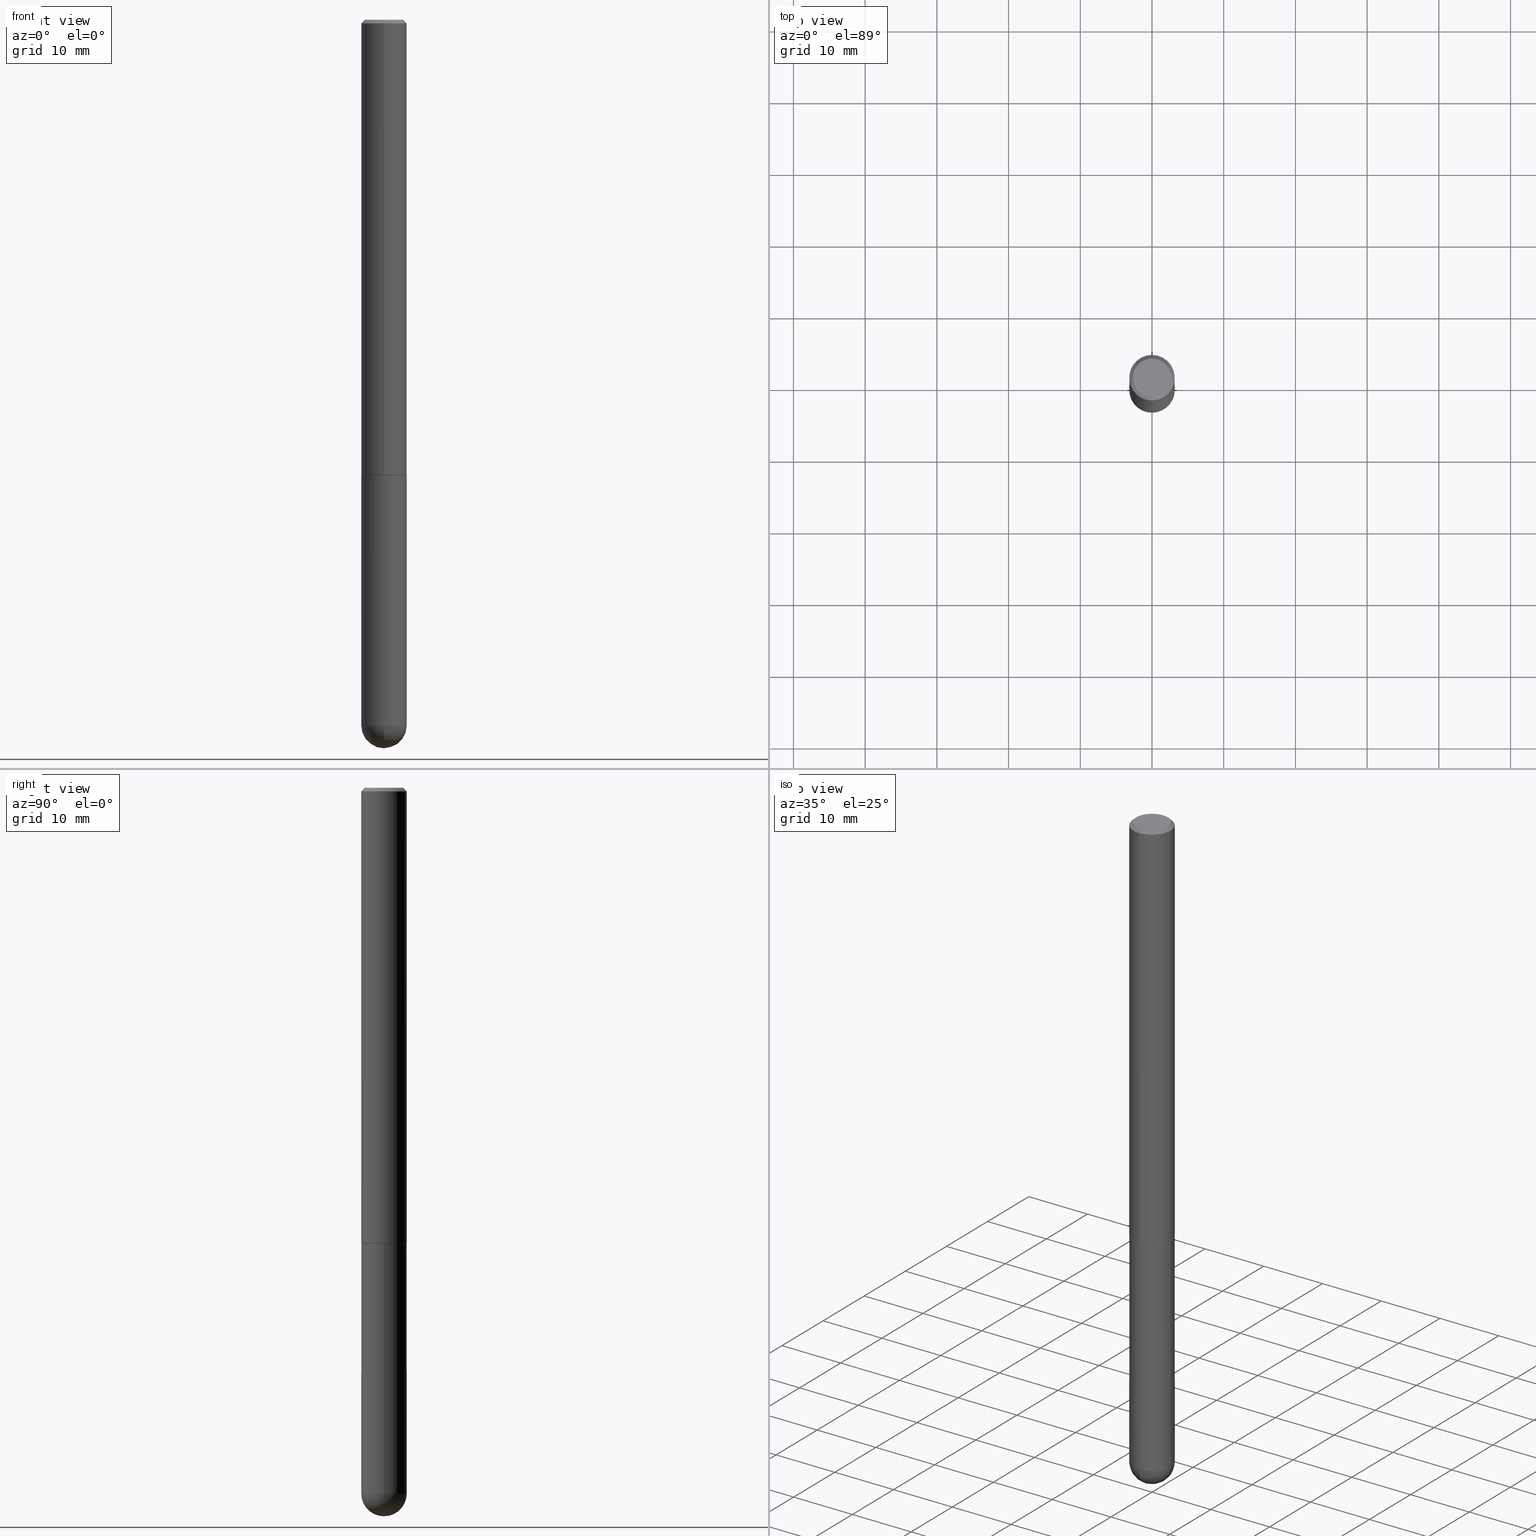
[diagram: canonical four-view strip — front | top / right | iso, engineering-drawing reading convention]
A machine part, canonical four-view strip (front | top / right | iso — engineering-drawing reading convention). The complete STEP part file that produces these views, byte-faithful:
ISO-10303-21;
HEADER;
FILE_DESCRIPTION (( 'STEP AP203' ),
    '1' );
FILE_NAME ('33124.STEP',
    '2024-02-21T17:52:29',
    ( '' ),
    ( '' ),
    'SwSTEP 2.0',
    'SolidWorks 2023',
    '' );
FILE_SCHEMA (( 'CONFIG_CONTROL_DESIGN' ));
ENDSEC;

DATA;
#1 = CARTESIAN_POINT ( 'NONE',  ( 4.698376246524950803E-45, -6.707010663619730204E-31, -1.921111269502891550E-16 ) ) ;
#2 = VERTEX_POINT ( 'NONE', #186 ) ;
#3 = EDGE_CURVE ( 'NONE', #216, #81, #60, .T. ) ;
#4 = AXIS2_PLACEMENT_3D ( 'NONE', #291, #301, #275 ) ;
#5 = PERSON_AND_ORGANIZATION ( #255, #123 ) ;
#6 = COORDINATED_UNIVERSAL_TIME_OFFSET ( 5, 0, .BEHIND. ) ;
#7 = FACE_OUTER_BOUND ( 'NONE', #379, .T. ) ;
#8 = CARTESIAN_POINT ( 'NONE',  ( 9.476191623967404313E-29, -1.352949018801718908E-14, -3.875000000000000000 ) ) ;
#9 = PERSON_AND_ORGANIZATION ( #255, #123 ) ;
#10 = FACE_OUTER_BOUND ( 'NONE', #239, .T. ) ;
#11 = DIRECTION ( 'NONE',  ( 5.024295867789304057E-15, 0.7071067811867248754, 0.7071067811863699371 ) ) ;
#12 = CONICAL_SURFACE ( 'NONE', #396, 0.1239999999999999991, 0.7853981633976958587 ) ;
#13 = CARTESIAN_POINT ( 'NONE',  ( -0.1250000000000000000, -1.024091834786240099E-14, -2.500000000000000000 ) ) ;
#14 = AXIS2_PLACEMENT_3D ( 'NONE', #343, #73, #402 ) ;
#15 = DIRECTION ( 'NONE',  ( 1.000000000000000000, -6.982962677686261189E-15, 0.000000000000000000 ) ) ;
#16 = EDGE_CURVE ( 'NONE', #304, #207, #155, .T. ) ;
#17 = ORIENTED_EDGE ( 'NONE', *, *, #141, .T. ) ;
#18 = CARTESIAN_POINT ( 'NONE',  ( 0.000000000000000000, 0.000000000000000000, 0.000000000000000000 ) ) ;
#19 = ORIENTED_EDGE ( 'NONE', *, *, #265, .F. ) ;
#20 = AXIS2_PLACEMENT_3D ( 'NONE', #278, #241, #305 ) ;
#21 = FACE_OUTER_BOUND ( 'NONE', #93, .T. ) ;
#22 = ORIENTED_EDGE ( 'NONE', *, *, #16, .F. ) ;
#23 = DIRECTION ( 'NONE',  ( -2.445655450108679082E-29, 3.491214054121520398E-15, 1.000000000000000000 ) ) ;
#24 = CARTESIAN_POINT ( 'NONE',  ( 4.698376246524950803E-45, -6.707010663619730204E-31, -1.921111269502891550E-16 ) ) ;
#25 = ORIENTED_EDGE ( 'NONE', *, *, #355, .T. ) ;
#26 = AXIS2_PLACEMENT_3D ( 'NONE', #94, #220, #356 ) ;
#27 = VERTEX_POINT ( 'NONE', #353 ) ;
#28 = EDGE_CURVE ( 'NONE', #87, #148, #187, .T. ) ;
#29 = PERSON_AND_ORGANIZATION ( #255, #123 ) ;
#30 = DIRECTION ( 'NONE',  ( -4.851104656540955597E-15, -0.7071067811865487940, -0.7071067811865461294 ) ) ;
#31 = DIRECTION ( 'NONE',  ( -2.445655450108679082E-29, 3.491214054121520398E-15, 1.000000000000000000 ) ) ;
#32 = CARTESIAN_POINT ( 'NONE',  ( 8.881784197001260212E-16, 0.1250000000000001388, -4.364017567651904935E-16 ) ) ;
#33 = VECTOR ( 'NONE', #315, 39.37007874015748143 ) ;
#34 = APPROVAL_PERSON_ORGANIZATION ( #324, #90, #388 ) ;
#35 = CALENDAR_DATE ( 2024, 21, 2 ) ;
#36 = ORIENTED_EDGE ( 'NONE', *, *, #202, .T. ) ;
#37 = COORDINATED_UNIVERSAL_TIME_OFFSET ( 5, 0, .BEHIND. ) ;
#38 = DIRECTION ( 'NONE',  ( -6.982962677686265922E-15, -1.000000000000000000, 4.406206441393973340E-15 ) ) ;
#39 = APPROVAL_STATUS ( 'not_yet_approved' ) ;
#40 = CIRCLE ( 'NONE', #91, 0.1250000000000000278 ) ;
#41 = LOCAL_TIME ( 12, 52, 29.00000000000000000, #357 ) ;
#42 = FACE_OUTER_BOUND ( 'NONE', #400, .T. ) ;
#43 = CALENDAR_DATE ( 2024, 21, 2 ) ;
#44 = DIRECTION ( 'NONE',  ( -2.445655450108679082E-29, 3.491214054121520398E-15, 1.000000000000000000 ) ) ;
#45 = ADVANCED_FACE ( 'NONE', ( #61 ), #253, .T. ) ;
#46 = CIRCLE ( 'NONE', #260, 0.1250000000000000278 ) ;
#47 = CARTESIAN_POINT ( 'NONE',  ( 4.891310900217364470E-31, -6.982428108243048636E-17, -0.02000000000000002470 ) ) ;
#48 = ORIENTED_EDGE ( 'NONE', *, *, #54, .F. ) ;
#49 = ORIENTED_EDGE ( 'NONE', *, *, #391, .F. ) ;
#50 = DIRECTION ( 'NONE',  ( -2.445655450108679082E-29, 3.491214054121520398E-15, 1.000000000000000000 ) ) ;
#51 = VECTOR ( 'NONE', #11, 39.37007874015748854 ) ;
#52 = VERTEX_POINT ( 'NONE', #151 ) ;
#53 = DIRECTION ( 'NONE',  ( 1.000000000000000000, 0.000000000000000000, 0.000000000000000000 ) ) ;
#54 = EDGE_CURVE ( 'NONE', #52, #304, #126, .T. ) ;
#55 = ORIENTED_EDGE ( 'NONE', *, *, #28, .F. ) ;
#56 = CIRCLE ( 'NONE', #403, 0.1250000000000002776 ) ;
#57 = CIRCLE ( 'NONE', #14, 0.1250000000000000000 ) ;
#58 = CARTESIAN_POINT ( 'NONE',  ( 0.000000000000000000, 0.000000000000000000, 0.000000000000000000 ) ) ;
#59 = CC_DESIGN_PERSON_AND_ORGANIZATION_ASSIGNMENT ( #258, #329, ( #109 ) ) ;
#60 = LINE ( 'NONE', #317, #33 ) ;
#61 = FACE_OUTER_BOUND ( 'NONE', #339, .T. ) ;
#62 = DIRECTION ( 'NONE',  ( -6.982962677686265922E-15, -1.000000000000000000, 3.491214054121520398E-15 ) ) ;
#63 = ORIENTED_EDGE ( 'NONE', *, *, #185, .T. ) ;
#64 = AXIS2_PLACEMENT_3D ( 'NONE', #112, #50, #344 ) ;
#65 = SHAPE_DEFINITION_REPRESENTATION ( #250, #272 ) ;
#66 = ORIENTED_EDGE ( 'NONE', *, *, #370, .T. ) ;
#67 = LINE ( 'NONE', #196, #116 ) ;
#68 = CYLINDRICAL_SURFACE ( 'NONE', #176, 0.1250000000000000000 ) ;
#69 = DATE_AND_TIME ( #363, #163 ) ;
#70 = DIRECTION ( 'NONE',  ( 6.982962677686266711E-15, 1.000000000000000000, 0.000000000000000000 ) ) ;
#71 = FACE_OUTER_BOUND ( 'NONE', #209, .T. ) ;
#72 = DIRECTION ( 'NONE',  ( -1.000000000000000000, 6.982962677686265922E-15, -4.883557194083112340E-29 ) ) ;
#73 = DIRECTION ( 'NONE',  ( -2.445468806185136597E-29, 3.491481338843145583E-15, 1.000000000000000000 ) ) ;
#74 = AXIS2_PLACEMENT_3D ( 'NONE', #115, #245, #380 ) ;
#75 = DIRECTION ( 'NONE',  ( -6.982962677686265922E-15, -1.000000000000000000, 3.491214054121520398E-15 ) ) ;
#76 = LOCAL_TIME ( 12, 52, 29.00000000000000000, #125 ) ;
#77 = ORIENTED_EDGE ( 'NONE', *, *, #188, .F. ) ;
#78 = ORIENTED_EDGE ( 'NONE', *, *, #370, .F. ) ;
#79 = CARTESIAN_POINT ( 'NONE',  ( 9.476191623967404313E-29, -1.352949018801718908E-14, -3.875000000000000000 ) ) ;
#80 = EDGE_CURVE ( 'NONE', #2, #304, #367, .T. ) ;
#81 = VERTEX_POINT ( 'NONE', #13 ) ;
#82 = DIRECTION ( 'NONE',  ( -6.982962677686265922E-15, -1.000000000000000000, 3.491214054121520004E-15 ) ) ;
#83 = ORIENTED_EDGE ( 'NONE', *, *, #3, .F. ) ;
#84 =( NAMED_UNIT ( * ) SI_UNIT ( $, .STERADIAN. ) SOLID_ANGLE_UNIT ( ) );
#85 = CARTESIAN_POINT ( 'NONE',  ( 9.456100236134031739E-29, -1.443245368101796326E-14, -4.000000000000000888 ) ) ;
#86 = APPLICATION_CONTEXT ( 'configuration controlled 3d designs of mechanical parts and assemblies' ) ;
#87 = VERTEX_POINT ( 'NONE', #167 ) ;
#88 = ADVANCED_FACE ( 'NONE', ( #234 ), #152, .T. ) ;
#89 = CARTESIAN_POINT ( 'NONE',  ( 9.476191623967404313E-29, -1.352949018801718908E-14, -3.875000000000000000 ) ) ;
#90 = APPROVAL ( #393, 'UNSPECIFIED' ) ;
#91 = AXIS2_PLACEMENT_3D ( 'NONE', #397, #362, #369 ) ;
#92 = CC_DESIGN_APPROVAL ( #267, ( #175 ) ) ;
#93 = EDGE_LOOP ( 'NONE', ( #110, #360, #19, #113 ) ) ;
#94 = CARTESIAN_POINT ( 'NONE',  ( 9.145071846053518065E-29, -1.400367255615723938E-14, -3.875000000000000000 ) ) ;
#95 = CALENDAR_DATE ( 2024, 21, 2 ) ;
#96 = ORIENTED_EDGE ( 'NONE', *, *, #188, .T. ) ;
#97 = VECTOR ( 'NONE', #31, 39.37007874015748143 ) ;
#98 = APPROVAL_DATE_TIME ( #264, #215 ) ;
#99 = CYLINDRICAL_SURFACE ( 'NONE', #142, 0.1250000000000000000 ) ;
#100 = DIRECTION ( 'NONE',  ( 1.000000000000000000, -6.982962677686270655E-15, 0.000000000000000000 ) ) ;
#101 = CARTESIAN_POINT ( 'NONE',  ( 6.114138625271698266E-29, -8.728035135303801982E-15, -2.500000000000000000 ) ) ;
#102 = CIRCLE ( 'NONE', #389, 0.1250000000000000278 ) ;
#103 = CC_DESIGN_APPROVAL ( #90, ( #351 ) ) ;
#104 = FACE_OUTER_BOUND ( 'NONE', #140, .T. ) ;
#105 = DIRECTION ( 'NONE',  ( 1.000000000000000000, -6.982962677686261189E-15, 0.000000000000000000 ) ) ;
#106 = ADVANCED_FACE ( 'NONE', ( #42 ), #157, .F. ) ;
#107 = CYLINDRICAL_SURFACE ( 'NONE', #243, 0.1250000000000001388 ) ;
#108 = CIRCLE ( 'NONE', #74, 0.1239999999999999991 ) ;
#109 = PRODUCT_DEFINITION_FORMATION_WITH_SPECIFIED_SOURCE ( 'ANY', '', #384, .NOT_KNOWN. ) ;
#110 = ORIENTED_EDGE ( 'NONE', *, *, #80, .T. ) ;
#111 = ADVANCED_FACE ( 'NONE', ( #7 ), #284, .T. ) ;
#112 = CARTESIAN_POINT ( 'NONE',  ( 4.891310900217364470E-31, -6.982428108243048636E-17, -0.02000000000000002470 ) ) ;
#113 = ORIENTED_EDGE ( 'NONE', *, *, #181, .F. ) ;
#114 = PLANE ( 'NONE',  #20 ) ;
#115 = CARTESIAN_POINT ( 'NONE',  ( 6.114138625271698266E-29, -8.728035135303801982E-15, -2.500000000000000000 ) ) ;
#116 = VECTOR ( 'NONE', #44, 39.37007874015748143 ) ;
#117 = ORIENTED_EDGE ( 'NONE', *, *, #181, .T. ) ;
#118 = DIRECTION ( 'NONE',  ( 0.000000000000000000, 0.000000000000000000, 1.000000000000000000 ) ) ;
#119 = PERSON_AND_ORGANIZATION_ROLE ( 'design_owner' ) ;
#120 = EDGE_LOOP ( 'NONE', ( #36, #145, #180, #77 ) ) ;
#121 = VERTEX_POINT ( 'NONE', #204 ) ;
#122 = AXIS2_PLACEMENT_3D ( 'NONE', #325, #270, #100 ) ;
#123 = ORGANIZATION ( 'UNSPECIFIED', 'UNSPECIFIED', '' ) ;
#124 = ADVANCED_FACE ( 'NONE', ( #10 ), #259, .T. ) ;
#125 = COORDINATED_UNIVERSAL_TIME_OFFSET ( 5, 0, .BEHIND. ) ;
#126 = LINE ( 'NONE', #222, #51 ) ;
#127 = DATE_TIME_ROLE ( 'creation_date' ) ;
#128 = DIRECTION ( 'NONE',  ( 6.982962677686265922E-15, 1.000000000000000000, -3.491214054121520398E-15 ) ) ;
#129 = EDGE_CURVE ( 'NONE', #383, #216, #102, .T. ) ;
#130 = DIRECTION ( 'NONE',  ( -2.445468806185136597E-29, 3.491481338843145583E-15, 1.000000000000000000 ) ) ;
#131 = APPROVAL_ROLE ( '' ) ;
#132 = DIRECTION ( 'NONE',  ( 1.000000000000000000, -6.982962677686266711E-15, 4.876176775795935793E-29 ) ) ;
#133 = DATE_AND_TIME ( #361, #41 ) ;
#134 = FACE_OUTER_BOUND ( 'NONE', #120, .T. ) ;
#135 = AXIS2_PLACEMENT_3D ( 'NONE', #226, #333, #197 ) ;
#136 = DIRECTION ( 'NONE',  ( -2.445468806185136597E-29, 3.491481338843145583E-15, 1.000000000000000000 ) ) ;
#137 = ADVANCED_FACE ( 'NONE', ( #71 ), #68, .T. ) ;
#138 = DIRECTION ( 'NONE',  ( -2.445655450108679082E-29, 3.491214054121520398E-15, 1.000000000000000000 ) ) ;
#139 = CYLINDRICAL_SURFACE ( 'NONE', #358, 0.1250000000000001388 ) ;
#140 = EDGE_LOOP ( 'NONE', ( #83, #349, #310, #279, #306 ) ) ;
#141 = EDGE_CURVE ( 'NONE', #183, #207, #228, .T. ) ;
#142 = AXIS2_PLACEMENT_3D ( 'NONE', #201, #136, #132 ) ;
#143 = FACE_OUTER_BOUND ( 'NONE', #340, .T. ) ;
#144 = CIRCLE ( 'NONE', #238, 0.1050000000000002182 ) ;
#145 = ORIENTED_EDGE ( 'NONE', *, *, #54, .T. ) ;
#146 = APPLICATION_CONTEXT ( 'configuration controlled 3d designs of mechanical parts and assemblies' ) ;
#147 = EDGE_LOOP ( 'NONE', ( #312, #178 ) ) ;
#148 = VERTEX_POINT ( 'NONE', #165 ) ;
#149 = DIRECTION ( 'NONE',  ( -2.445468806185136877E-29, 3.491481338843145188E-15, 1.000000000000000000 ) ) ;
#150 = EDGE_CURVE ( 'NONE', #289, #383, #314, .T. ) ;
#151 = CARTESIAN_POINT ( 'NONE',  ( 8.846257060213868511E-16, 0.1239999999999912700, -2.500000000000000444 ) ) ;
#152 = CONICAL_SURFACE ( 'NONE', #308, 0.1239999999999999991, 0.7853981633976958587 ) ;
#153 = LOCAL_TIME ( 12, 52, 29.00000000000000000, #37 ) ;
#154 =( NAMED_UNIT ( * ) PLANE_ANGLE_UNIT ( ) SI_UNIT ( $, .RADIAN. ) );
#155 = LINE ( 'NONE', #32, #97 ) ;
#156 = PERSON_AND_ORGANIZATION ( #255, #123 ) ;
#157 = PLANE ( 'NONE',  #269 ) ;
#158 = ADVANCED_FACE ( 'NONE', ( #104 ), #99, .T. ) ;
#159 = CARTESIAN_POINT ( 'NONE',  ( 8.728703347107836346E-16, 0.1249999999999999167, -0.02000000000000046185 ) ) ;
#160 = CC_DESIGN_DATE_AND_TIME_ASSIGNMENT ( #221, #290, ( #351 ) ) ;
#161 = CLOSED_SHELL ( 'NONE', ( #166, #235, #111, #277, #229, #88, #319, #106 ) ) ;
#162 = APPROVAL_ROLE ( '' ) ;
#163 = LOCAL_TIME ( 12, 52, 29.00000000000000000, #6 ) ;
#164 = CARTESIAN_POINT ( 'NONE',  ( 8.030407079339215197E-16, 0.1050000000000002182, -5.586886026330495442E-16 ) ) ;
#165 = CARTESIAN_POINT ( 'NONE',  ( 0.1250000000000000000, -9.601573681818648281E-15, -2.500000000000000000 ) ) ;
#166 = ADVANCED_FACE ( 'NONE', ( #134 ), #12, .T. ) ;
#167 = CARTESIAN_POINT ( 'NONE',  ( 0.1250000000000000278, -1.200196710227331272E-14, -3.875000000000000000 ) ) ;
#168 = CONICAL_SURFACE ( 'NONE', #410, 0.1249999999999999861, 0.7853981633974467247 ) ;
#169 = AXIS2_PLACEMENT_3D ( 'NONE', #58, #118, #53 ) ;
#170 = DIRECTION ( 'NONE',  ( -2.445655450108679082E-29, 3.491214054121520398E-15, 1.000000000000000000 ) ) ;
#171 = FACE_OUTER_BOUND ( 'NONE', #276, .T. ) ;
#172 = EDGE_CURVE ( 'NONE', #87, #383, #40, .T. ) ;
#173 = ORIENTED_EDGE ( 'NONE', *, *, #355, .F. ) ;
#174 = EDGE_LOOP ( 'NONE', ( #48, #405, #96, #374 ) ) ;
#175 = PRODUCT_DEFINITION ( 'UNKNOWN', '', #109, #371 ) ;
#176 = AXIS2_PLACEMENT_3D ( 'NONE', #331, #390, #326 ) ;
#177 = CARTESIAN_POINT ( 'NONE',  ( 0.000000000000000000, 0.000000000000000000, 0.000000000000000000 ) ) ;
#178 = ORIENTED_EDGE ( 'NONE', *, *, #292, .F. ) ;
#179 = DIRECTION ( 'NONE',  ( 2.445655450108679082E-29, -3.491214054121520398E-15, -1.000000000000000000 ) ) ;
#180 = ORIENTED_EDGE ( 'NONE', *, *, #80, .F. ) ;
#181 = EDGE_CURVE ( 'NONE', #2, #27, #67, .T. ) ;
#182 = CARTESIAN_POINT ( 'NONE',  ( -8.658873720330357934E-16, -0.1240000000000087144, -2.499999999999999556 ) ) ;
#183 = VERTEX_POINT ( 'NONE', #164 ) ;
#184 = DIRECTION ( 'NONE',  ( -2.445468806185136597E-29, 3.491481338843145583E-15, 1.000000000000000000 ) ) ;
#185 = EDGE_CURVE ( 'NONE', #81, #148, #210, .T. ) ;
#186 = CARTESIAN_POINT ( 'NONE',  ( -8.728703347107241743E-16, -0.1250000000000090206, -2.498999999999999666 ) ) ;
#187 = LINE ( 'NONE', #251, #365 ) ;
#188 = EDGE_CURVE ( 'NONE', #337, #2, #364, .T. ) ;
#189 = CARTESIAN_POINT ( 'NONE',  ( 8.728703347108771147E-16, 0.1249999999999863443, -3.875000000000000444 ) ) ;
#190 = ORIENTED_EDGE ( 'NONE', *, *, #408, .F. ) ;
#191 = AXIS2_PLACEMENT_3D ( 'NONE', #294, #72, #300 ) ;
#192 = CIRCLE ( 'NONE', #244, 0.1249999999999999861 ) ;
#193 = DIRECTION ( 'NONE',  ( -6.982962677686265922E-15, -1.000000000000000000, 3.491214054121520398E-15 ) ) ;
#194 = PERSON_AND_ORGANIZATION_ROLE ( 'design_supplier' ) ;
#195 = CC_DESIGN_PERSON_AND_ORGANIZATION_ASSIGNMENT ( #348, #119, ( #384 ) ) ;
#196 = CARTESIAN_POINT ( 'NONE',  ( -8.728703347107842263E-16, -0.1250000000000001388, 4.364017567651904935E-16 ) ) ;
#197 = DIRECTION ( 'NONE',  ( 6.982962677686265922E-15, 1.000000000000000000, -3.483106191921935949E-15 ) ) ;
#198 = VECTOR ( 'NONE', #394, 39.37007874015748854 ) ;
#199 = APPROVAL_DATE_TIME ( #133, #90 ) ;
#200 = CIRCLE ( 'NONE', #342, 0.1050000000000002182 ) ;
#201 = CARTESIAN_POINT ( 'NONE',  ( 0.000000000000000000, 0.000000000000000000, 0.000000000000000000 ) ) ;
#202 = EDGE_CURVE ( 'NONE', #337, #52, #327, .T. ) ;
#203 = DIRECTION ( 'NONE',  ( -2.445655450108679082E-29, 3.491214054121520398E-15, 1.000000000000000000 ) ) ;
#204 = CARTESIAN_POINT ( 'NONE',  ( -7.889572697437265083E-16, -0.1050000000000002182, 1.744663487324712343E-16 ) ) ;
#205 = ORIENTED_EDGE ( 'NONE', *, *, #150, .F. ) ;
#206 = DIRECTION ( 'NONE',  ( -2.445655450108679082E-29, 3.491214054121520398E-15, 1.000000000000000000 ) ) ;
#207 = VERTEX_POINT ( 'NONE', #303 ) ;
#208 = CARTESIAN_POINT ( 'NONE',  ( -0.1250000000000000278, -1.024091834786240415E-14, -3.875000000000000000 ) ) ;
#209 = EDGE_LOOP ( 'NONE', ( #345, #381, #190, #55, #242 ) ) ;
#210 = CIRCLE ( 'NONE', #122, 0.1250000000000000000 ) ;
#211 = CIRCLE ( 'NONE', #4, 0.1250000000000001943 ) ;
#212 = ORIENTED_EDGE ( 'NONE', *, *, #265, .T. ) ;
#213 = CARTESIAN_POINT ( 'NONE',  ( 8.881784197001571812E-16, 0.1249999999999915484, -2.499000000000000998 ) ) ;
#214 = ORIENTED_EDGE ( 'NONE', *, *, #307, .T. ) ;
#215 = APPROVAL ( #262, 'UNSPECIFIED' ) ;
#216 = VERTEX_POINT ( 'NONE', #208 ) ;
#217 = DIRECTION ( 'NONE',  ( -2.445655450108679082E-29, 3.491214054121520398E-15, 1.000000000000000000 ) ) ;
#218 = AXIS2_PLACEMENT_3D ( 'NONE', #330, #203, #227 ) ;
#219 = ORIENTED_EDGE ( 'NONE', *, *, #408, .T. ) ;
#220 = DIRECTION ( 'NONE',  ( -1.000000000000000000, 6.982962677686265922E-15, -4.883557194083112340E-29 ) ) ;
#221 = DATE_AND_TIME ( #35, #76 ) ;
#222 = CARTESIAN_POINT ( 'NONE',  ( 8.810729923425852623E-16, 0.1239999999999912700, -2.500000000000000444 ) ) ;
#223 = AXIS2_PLACEMENT_3D ( 'NONE', #101, #206, #336 ) ;
#224 = ADVANCED_FACE ( 'NONE', ( #404 ), #114, .F. ) ;
#225 = SECURITY_CLASSIFICATION_LEVEL ( 'unclassified' ) ;
#226 = CARTESIAN_POINT ( 'NONE',  ( 4.891310900217364470E-31, -6.982428108243048636E-17, -0.02000000000000002470 ) ) ;
#227 = DIRECTION ( 'NONE',  ( -6.982962677686266711E-15, -1.000000000000000000, 4.370956789862811683E-15 ) ) ;
#228 = LINE ( 'NONE', #159, #341 ) ;
#229 = ADVANCED_FACE ( 'NONE', ( #171 ), #107, .T. ) ;
#230 =( GEOMETRIC_REPRESENTATION_CONTEXT ( 3 ) GLOBAL_UNCERTAINTY_ASSIGNED_CONTEXT ( ( #395 ) ) GLOBAL_UNIT_ASSIGNED_CONTEXT ( ( #350, #154, #84 ) ) REPRESENTATION_CONTEXT ( 'NONE', 'WORKASPACE' ) );
#231 = CIRCLE ( 'NONE', #261, 0.1250000000000000278 ) ;
#232 = CARTESIAN_POINT ( 'NONE',  ( 7.332110811570594048E-16, 0.1050000000000002182, -4.626330391579049175E-16 ) ) ;
#233 = PRODUCT_RELATED_PRODUCT_CATEGORY ( 'detail', '', ( #384 ) ) ;
#234 = FACE_OUTER_BOUND ( 'NONE', #174, .T. ) ;
#235 = ADVANCED_FACE ( 'NONE', ( #21 ), #139, .T. ) ;
#236 = CARTESIAN_POINT ( 'NONE',  ( 6.114138625271698266E-29, -8.728035135303801982E-15, -2.500000000000000000 ) ) ;
#237 = CC_DESIGN_PERSON_AND_ORGANIZATION_ASSIGNMENT ( #156, #194, ( #109 ) ) ;
#238 = AXIS2_PLACEMENT_3D ( 'NONE', #1, #412, #62 ) ;
#239 = EDGE_LOOP ( 'NONE', ( #409, #323, #378, #286 ) ) ;
#240 = CARTESIAN_POINT ( 'NONE',  ( -8.881784197000327384E-16, -0.1250000000000138500, -3.874999999999999556 ) ) ;
#241 = DIRECTION ( 'NONE',  ( 2.438088387897960049E-29, -3.491481338843145188E-15, -1.000000000000000000 ) ) ;
#242 = ORIENTED_EDGE ( 'NONE', *, *, #172, .T. ) ;
#243 = AXIS2_PLACEMENT_3D ( 'NONE', #177, #170, #82 ) ;
#244 = AXIS2_PLACEMENT_3D ( 'NONE', #387, #217, #311 ) ;
#245 = DIRECTION ( 'NONE',  ( -2.445655450108679082E-29, 3.491214054121520398E-15, 1.000000000000000000 ) ) ;
#246 = ORIENTED_EDGE ( 'NONE', *, *, #332, .F. ) ;
#247 = CC_DESIGN_DATE_AND_TIME_ASSIGNMENT ( #287, #127, ( #175 ) ) ;
#248 = LINE ( 'NONE', #352, #385 ) ;
#249 = ORIENTED_EDGE ( 'NONE', *, *, #401, .T. ) ;
#250 = PRODUCT_DEFINITION_SHAPE ( 'NONE', 'NONE',  #175 ) ;
#251 = CARTESIAN_POINT ( 'NONE',  ( 0.1250000000000000000, -8.728703347107833388E-16, 6.095220969744919741E-30 ) ) ;
#252 = CC_DESIGN_APPROVAL ( #215, ( #109 ) ) ;
#253 = SPHERICAL_SURFACE ( 'NONE', #26, 0.1250000000000001943 ) ;
#254 = PERSON_AND_ORGANIZATION_ROLE ( 'classification_officer' ) ;
#255 = PERSON ( 'UNSPECIFIED', 'UNSPECIFIED', 'UNSPECIFIED', ('UNSPECIFIED'), ('UNSPECIFIED'), ('UNSPECIFIED') ) ;
#256 = MANIFOLD_SOLID_BREP ( 'Body-Move/Copy2[2]', #161 ) ;
#257 = MANIFOLD_SOLID_BREP ( 'Body-Move/Copy2[1]', #320 ) ;
#258 = PERSON_AND_ORGANIZATION ( #255, #123 ) ;
#259 = SPHERICAL_SURFACE ( 'NONE', #191, 0.1250000000000001943 ) ;
#260 = AXIS2_PLACEMENT_3D ( 'NONE', #79, #407, #15 ) ;
#261 = AXIS2_PLACEMENT_3D ( 'NONE', #89, #184, #318 ) ;
#262 = APPROVAL_STATUS ( 'not_yet_approved' ) ;
#263 = DIRECTION ( 'NONE',  ( 4.937700262164540154E-15, 0.7071067811865440200, -0.7071067811865511255 ) ) ;
#264 = DATE_AND_TIME ( #95, #153 ) ;
#265 = EDGE_CURVE ( 'NONE', #27, #207, #280, .T. ) ;
#266 = DIRECTION ( 'NONE',  ( -6.982962677686265922E-15, -1.000000000000000000, 4.406206441393973340E-15 ) ) ;
#267 = APPROVAL ( #39, 'UNSPECIFIED' ) ;
#268 = CARTESIAN_POINT ( 'NONE',  ( 6.114138625271698266E-29, -8.728035135303801982E-15, -2.500000000000000000 ) ) ;
#269 = AXIS2_PLACEMENT_3D ( 'NONE', #232, #293, #128 ) ;
#270 = DIRECTION ( 'NONE',  ( -2.445468806185136597E-29, 3.491481338843145583E-15, 1.000000000000000000 ) ) ;
#271 = DIRECTION ( 'NONE',  ( -6.982962677686266711E-15, -1.000000000000000000, 4.370956789862811683E-15 ) ) ;
#272 = ADVANCED_BREP_SHAPE_REPRESENTATION ( '33124', ( #257, #256, #169 ), #230 ) ;
#273 = FACE_OUTER_BOUND ( 'NONE', #147, .T. ) ;
#274 = VERTEX_POINT ( 'NONE', #240 ) ;
#275 = DIRECTION ( 'NONE',  ( -7.105427357601001859E-15, -1.000000000000000000, 0.000000000000000000 ) ) ;
#276 = EDGE_LOOP ( 'NONE', ( #22, #214, #117, #173 ) ) ;
#277 = ADVANCED_FACE ( 'NONE', ( #143 ), #168, .T. ) ;
#278 = CARTESIAN_POINT ( 'NONE',  ( 8.728703347108443769E-16, 0.1249999999999912709, -2.500000000000000444 ) ) ;
#279 = ORIENTED_EDGE ( 'NONE', *, *, #28, .T. ) ;
#280 = CIRCLE ( 'NONE', #64, 0.1249999999999999861 ) ;
#281 = DIRECTION ( 'NONE',  ( -2.445655450108679082E-29, 3.491214054121520398E-15, 1.000000000000000000 ) ) ;
#282 = LENGTH_MEASURE_WITH_UNIT ( LENGTH_MEASURE( 0.02539999999999999897 ), #411 );
#283 = ORIENTED_EDGE ( 'NONE', *, *, #338, .F. ) ;
#284 = CONICAL_SURFACE ( 'NONE', #135, 0.1249999999999999861, 0.7853981633974467247 ) ;
#285 = APPROVAL_PERSON_ORGANIZATION ( #29, #267, #162 ) ;
#286 = ORIENTED_EDGE ( 'NONE', *, *, #288, .F. ) ;
#287 = DATE_AND_TIME ( #43, #295 ) ;
#288 = EDGE_CURVE ( 'NONE', #274, #87, #46, .T. ) ;
#289 = VERTEX_POINT ( 'NONE', #85 ) ;
#290 = DATE_TIME_ROLE ( 'classification_date' ) ;
#291 = CARTESIAN_POINT ( 'NONE',  ( 9.145071846053518065E-29, -1.400367255615723938E-14, -3.875000000000000000 ) ) ;
#292 = EDGE_CURVE ( 'NONE', #52, #337, #108, .T. ) ;
#293 = DIRECTION ( 'NONE',  ( 2.445655450108678802E-29, -3.491214054121520398E-15, -1.000000000000000000 ) ) ;
#294 = CARTESIAN_POINT ( 'NONE',  ( 9.145071846053518065E-29, -1.400367255615723938E-14, -3.875000000000000000 ) ) ;
#295 = LOCAL_TIME ( 12, 52, 29.00000000000000000, #386 ) ;
#296 = APPROVAL_DATE_TIME ( #69, #267 ) ;
#297 = CARTESIAN_POINT ( 'NONE',  ( -8.658873720330357934E-16, -0.1240000000000087144, -2.499999999999999556 ) ) ;
#298 = PERSON_AND_ORGANIZATION_ROLE ( 'creator' ) ;
#299 = CARTESIAN_POINT ( 'NONE',  ( 9.145071846053518065E-29, -1.400367255615723938E-14, -3.875000000000000000 ) ) ;
#300 = DIRECTION ( 'NONE',  ( 6.982962677686265922E-15, 1.000000000000000000, -4.370956789862814050E-15 ) ) ;
#301 = DIRECTION ( 'NONE',  ( -1.000000000000000000, 7.105427357601001070E-15, -4.926315508542082329E-29 ) ) ;
#302 = CARTESIAN_POINT ( 'NONE',  ( 6.111692969821589425E-29, -8.724543921249680758E-15, -2.499000000000000110 ) ) ;
#303 = CARTESIAN_POINT ( 'NONE',  ( 8.728703347107836346E-16, 0.1249999999999999167, -0.02000000000000046185 ) ) ;
#304 = VERTEX_POINT ( 'NONE', #213 ) ;
#305 = DIRECTION ( 'NONE',  ( -1.000000000000000000, 6.982962677686265922E-15, -4.876176775795935793E-29 ) ) ;
#306 = ORIENTED_EDGE ( 'NONE', *, *, #185, .F. ) ;
#307 = EDGE_CURVE ( 'NONE', #304, #2, #56, .T. ) ;
#308 = AXIS2_PLACEMENT_3D ( 'NONE', #398, #366, #38 ) ;
#309 = ORIENTED_EDGE ( 'NONE', *, *, #141, .F. ) ;
#310 = ORIENTED_EDGE ( 'NONE', *, *, #288, .T. ) ;
#311 = DIRECTION ( 'NONE',  ( -6.982962677686265922E-15, -1.000000000000000000, 3.483106191921935949E-15 ) ) ;
#312 = ORIENTED_EDGE ( 'NONE', *, *, #202, .F. ) ;
#313 = MECHANICAL_CONTEXT ( 'NONE', #86, 'mechanical' ) ;
#314 = CIRCLE ( 'NONE', #334, 0.1250000000000001943 ) ;
#315 = DIRECTION ( 'NONE',  ( -2.445468806185136877E-29, 3.491481338843145188E-15, 1.000000000000000000 ) ) ;
#316 = APPLICATION_PROTOCOL_DEFINITION ( 'international standard', 'config_control_design', 1994, #146 ) ;
#317 = CARTESIAN_POINT ( 'NONE',  ( -0.1250000000000000000, 8.881784197001252323E-16, -6.148668862818632227E-30 ) ) ;
#318 = DIRECTION ( 'NONE',  ( 1.000000000000000000, -6.982962677686261189E-15, 0.000000000000000000 ) ) ;
#319 = ADVANCED_FACE ( 'NONE', ( #273 ), #399, .F. ) ;
#320 = CLOSED_SHELL ( 'NONE', ( #137, #45, #124, #224, #158 ) ) ;
#321 = ORIENTED_EDGE ( 'NONE', *, *, #391, .T. ) ;
#322 = CC_DESIGN_PERSON_AND_ORGANIZATION_ASSIGNMENT ( #5, #298, ( #175 ) ) ;
#323 = ORIENTED_EDGE ( 'NONE', *, *, #150, .T. ) ;
#324 = PERSON_AND_ORGANIZATION ( #255, #123 ) ;
#325 = CARTESIAN_POINT ( 'NONE',  ( 6.113672015462842613E-29, -8.728703347107864943E-15, -2.500000000000000000 ) ) ;
#326 = DIRECTION ( 'NONE',  ( 1.000000000000000000, -6.982962677686266711E-15, 4.876176775795935793E-29 ) ) ;
#327 = CIRCLE ( 'NONE', #223, 0.1239999999999999991 ) ;
#328 = CC_DESIGN_PERSON_AND_ORGANIZATION_ASSIGNMENT ( #368, #254, ( #351 ) ) ;
#329 = PERSON_AND_ORGANIZATION_ROLE ( 'creator' ) ;
#330 = CARTESIAN_POINT ( 'NONE',  ( 6.111692969821589425E-29, -8.724543921249680758E-15, -2.499000000000000110 ) ) ;
#331 = CARTESIAN_POINT ( 'NONE',  ( 0.000000000000000000, 0.000000000000000000, 0.000000000000000000 ) ) ;
#332 = EDGE_CURVE ( 'NONE', #216, #274, #231, .T. ) ;
#333 = DIRECTION ( 'NONE',  ( 2.445655450108679082E-29, -3.491214054121520398E-15, -1.000000000000000000 ) ) ;
#334 = AXIS2_PLACEMENT_3D ( 'NONE', #299, #392, #70 ) ;
#335 = APPROVAL_PERSON_ORGANIZATION ( #9, #215, #131 ) ;
#336 = DIRECTION ( 'NONE',  ( -6.982962677686265922E-15, -1.000000000000000000, 4.406206441393973340E-15 ) ) ;
#337 = VERTEX_POINT ( 'NONE', #182 ) ;
#338 = EDGE_CURVE ( 'NONE', #183, #121, #144, .T. ) ;
#339 = EDGE_LOOP ( 'NONE', ( #205, #249, #246, #376 ) ) ;
#340 = EDGE_LOOP ( 'NONE', ( #78, #283, #17, #25 ) ) ;
#341 = VECTOR ( 'NONE', #263, 39.37007874015748143 ) ;
#342 = AXIS2_PLACEMENT_3D ( 'NONE', #24, #281, #193 ) ;
#343 = CARTESIAN_POINT ( 'NONE',  ( 6.113672015462842613E-29, -8.728703347107864943E-15, -2.500000000000000000 ) ) ;
#344 = DIRECTION ( 'NONE',  ( -6.982962677686265922E-15, -1.000000000000000000, 3.483106191921935949E-15 ) ) ;
#345 = ORIENTED_EDGE ( 'NONE', *, *, #129, .T. ) ;
#346 = APPLICATION_PROTOCOL_DEFINITION ( 'international standard', 'config_control_design', 1994, #86 ) ;
#347 = EDGE_LOOP ( 'NONE', ( #219, #63 ) ) ;
#348 = PERSON_AND_ORGANIZATION ( #255, #123 ) ;
#349 = ORIENTED_EDGE ( 'NONE', *, *, #332, .T. ) ;
#350 =( CONVERSION_BASED_UNIT ( 'INCH', #282 ) LENGTH_UNIT ( ) NAMED_UNIT ( #382 ) );
#351 = SECURITY_CLASSIFICATION ( '', '', #225 ) ;
#352 = CARTESIAN_POINT ( 'NONE',  ( -8.575622497214407550E-16, -0.1250000000000000555, -0.01999999999999959102 ) ) ;
#353 = CARTESIAN_POINT ( 'NONE',  ( -8.575622497214407550E-16, -0.1250000000000000555, -0.01999999999999959102 ) ) ;
#354 = ORIENTED_EDGE ( 'NONE', *, *, #338, .T. ) ;
#355 = EDGE_CURVE ( 'NONE', #207, #27, #192, .T. ) ;
#356 = DIRECTION ( 'NONE',  ( 6.982962677686265922E-15, 1.000000000000000000, -4.370956789862814050E-15 ) ) ;
#357 = COORDINATED_UNIVERSAL_TIME_OFFSET ( 5, 0, .BEHIND. ) ;
#358 = AXIS2_PLACEMENT_3D ( 'NONE', #18, #23, #406 ) ;
#359 = CC_DESIGN_SECURITY_CLASSIFICATION ( #351, ( #109 ) ) ;
#360 = ORIENTED_EDGE ( 'NONE', *, *, #16, .T. ) ;
#361 = CALENDAR_DATE ( 2024, 21, 2 ) ;
#362 = DIRECTION ( 'NONE',  ( -2.445468806185136597E-29, 3.491481338843145583E-15, 1.000000000000000000 ) ) ;
#363 = CALENDAR_DATE ( 2024, 21, 2 ) ;
#364 = LINE ( 'NONE', #297, #198 ) ;
#365 = VECTOR ( 'NONE', #149, 39.37007874015748143 ) ;
#366 = DIRECTION ( 'NONE',  ( -2.445655450108679082E-29, 3.491214054121520398E-15, 1.000000000000000000 ) ) ;
#367 = CIRCLE ( 'NONE', #218, 0.1250000000000002776 ) ;
#368 = PERSON_AND_ORGANIZATION ( #255, #123 ) ;
#369 = DIRECTION ( 'NONE',  ( 1.000000000000000000, -6.982962677686261189E-15, 0.000000000000000000 ) ) ;
#370 = EDGE_CURVE ( 'NONE', #121, #27, #248, .T. ) ;
#371 = DESIGN_CONTEXT ( 'detailed design', #146, 'design' ) ;
#372 = DIRECTION ( 'NONE',  ( -2.445655450108679082E-29, 3.491214054121520398E-15, 1.000000000000000000 ) ) ;
#373 = DIRECTION ( 'NONE',  ( -2.445655450108678802E-29, 3.491214054121520398E-15, 1.000000000000000000 ) ) ;
#374 = ORIENTED_EDGE ( 'NONE', *, *, #307, .F. ) ;
#375 = AXIS2_PLACEMENT_3D ( 'NONE', #236, #373, #75 ) ;
#376 = ORIENTED_EDGE ( 'NONE', *, *, #129, .F. ) ;
#377 = DIRECTION ( 'NONE',  ( 6.982962677686265922E-15, 1.000000000000000000, -3.483106191921935949E-15 ) ) ;
#378 = ORIENTED_EDGE ( 'NONE', *, *, #172, .F. ) ;
#379 = EDGE_LOOP ( 'NONE', ( #49, #66, #212, #309 ) ) ;
#380 = DIRECTION ( 'NONE',  ( -6.982962677686265922E-15, -1.000000000000000000, 4.406206441393973340E-15 ) ) ;
#381 = ORIENTED_EDGE ( 'NONE', *, *, #3, .T. ) ;
#382 = DIMENSIONAL_EXPONENTS ( 1.000000000000000000, 0.000000000000000000, 0.000000000000000000, 0.000000000000000000, 0.000000000000000000, 0.000000000000000000, 0.000000000000000000 ) ;
#383 = VERTEX_POINT ( 'NONE', #189 ) ;
#384 = PRODUCT ( '33124', '33124', '', ( #313 ) ) ;
#385 = VECTOR ( 'NONE', #30, 39.37007874015748854 ) ;
#386 = COORDINATED_UNIVERSAL_TIME_OFFSET ( 5, 0, .BEHIND. ) ;
#387 = CARTESIAN_POINT ( 'NONE',  ( 4.891310900217364470E-31, -6.982428108243048636E-17, -0.02000000000000002470 ) ) ;
#388 = APPROVAL_ROLE ( '' ) ;
#389 = AXIS2_PLACEMENT_3D ( 'NONE', #8, #130, #105 ) ;
#390 = DIRECTION ( 'NONE',  ( -2.445468806185136597E-29, 3.491481338843145583E-15, 1.000000000000000000 ) ) ;
#391 = EDGE_CURVE ( 'NONE', #121, #183, #200, .T. ) ;
#392 = DIRECTION ( 'NONE',  ( 1.000000000000000000, -6.982962677686265922E-15, 4.883557194083112340E-29 ) ) ;
#393 = APPROVAL_STATUS ( 'not_yet_approved' ) ;
#394 = DIRECTION ( 'NONE',  ( -4.937700262165769199E-15, -0.7071067811867199904, 0.7071067811863748220 ) ) ;
#395 = UNCERTAINTY_MEASURE_WITH_UNIT (LENGTH_MEASURE( 1.000000000000000082E-05 ), #350, 'distance_accuracy_value', 'NONE');
#396 = AXIS2_PLACEMENT_3D ( 'NONE', #268, #372, #266 ) ;
#397 = CARTESIAN_POINT ( 'NONE',  ( 9.476191623967404313E-29, -1.352949018801718908E-14, -3.875000000000000000 ) ) ;
#398 = CARTESIAN_POINT ( 'NONE',  ( 6.114138625271698266E-29, -8.728035135303801982E-15, -2.500000000000000000 ) ) ;
#399 = PLANE ( 'NONE',  #375 ) ;
#400 = EDGE_LOOP ( 'NONE', ( #354, #321 ) ) ;
#401 = EDGE_CURVE ( 'NONE', #289, #274, #211, .T. ) ;
#402 = DIRECTION ( 'NONE',  ( 1.000000000000000000, -6.982962677686270655E-15, 0.000000000000000000 ) ) ;
#403 = AXIS2_PLACEMENT_3D ( 'NONE', #302, #138, #271 ) ;
#404 = FACE_OUTER_BOUND ( 'NONE', #347, .T. ) ;
#405 = ORIENTED_EDGE ( 'NONE', *, *, #292, .T. ) ;
#406 = DIRECTION ( 'NONE',  ( -6.982962677686265922E-15, -1.000000000000000000, 3.491214054121520004E-15 ) ) ;
#407 = DIRECTION ( 'NONE',  ( -2.445468806185136597E-29, 3.491481338843145583E-15, 1.000000000000000000 ) ) ;
#408 = EDGE_CURVE ( 'NONE', #148, #81, #57, .T. ) ;
#409 = ORIENTED_EDGE ( 'NONE', *, *, #401, .F. ) ;
#410 = AXIS2_PLACEMENT_3D ( 'NONE', #47, #179, #377 ) ;
#411 =( LENGTH_UNIT ( ) NAMED_UNIT ( * ) SI_UNIT ( $, .METRE. ) );
#412 = DIRECTION ( 'NONE',  ( -2.445655450108679082E-29, 3.491214054121520398E-15, 1.000000000000000000 ) ) ;
ENDSEC;
END-ISO-10303-21;
